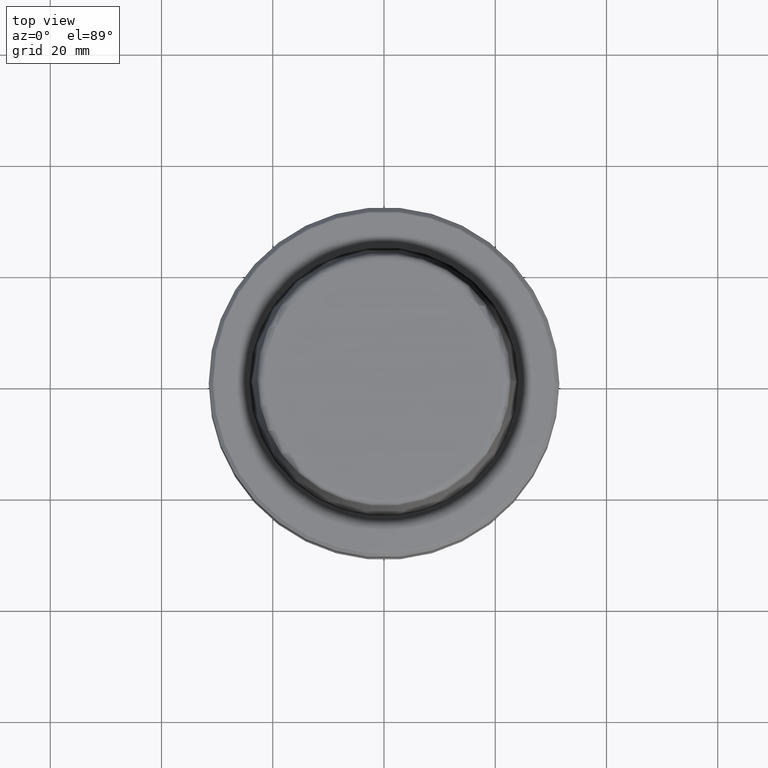
[diagram: clean part render]
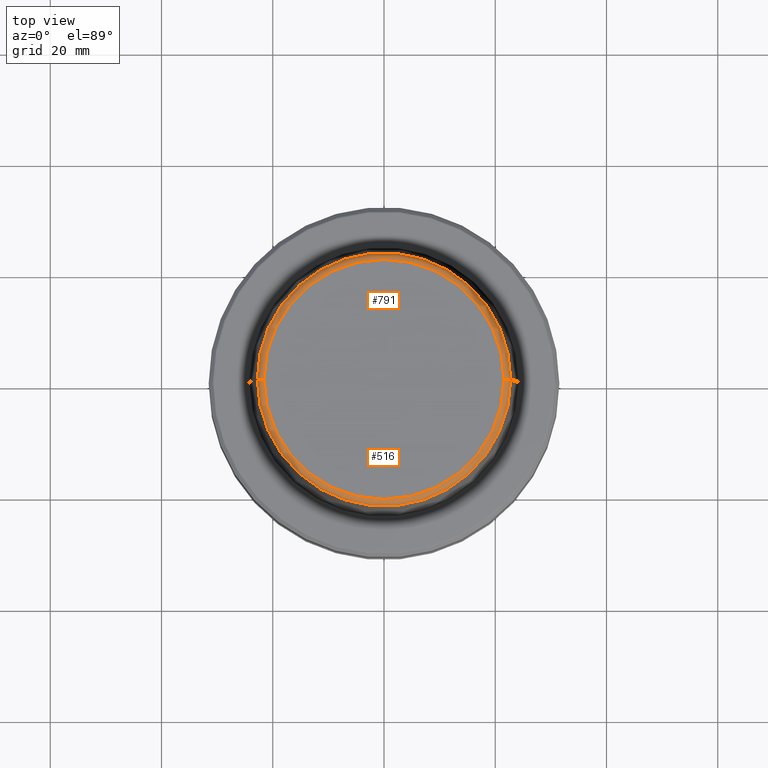
[diagram: same view with one multi-face feature highlighted, each face labeled with its STEP entity id]
A machine part, top view. The highlighted faces form ONE feature: a constant-radius fillet chain: 2 tangent blend faces with common blend radius 1.2 mm. The faces share edges in the B-rep.
Their STEP definitions:
[1] entity #791 (Torus):
#27 = AXIS2_PLACEMENT_3D ( 'NONE', #905, #327, #1014 ) ;
#49 = DIRECTION ( 'NONE',  ( 1.000000000000000000, 0.0000000000000000000, 0.0000000000000000000 ) ) ;
#127 = DIRECTION ( 'NONE',  ( 0.0000000000000000000, 0.0000000000000000000, -1.000000000000000000 ) ) ;
#139 = DIRECTION ( 'NONE',  ( -0.0000000000000000000, -0.0000000000000000000, 1.000000000000000000 ) ) ;
#148 = VERTEX_POINT ( 'NONE', #1227 ) ;
#157 = AXIS2_PLACEMENT_3D ( 'NONE', #281, #966, #385 ) ;
#259 = AXIS2_PLACEMENT_3D ( 'NONE', #1026, #824, #49 ) ;
#281 = CARTESIAN_POINT ( 'NONE',  ( -21.58108272732117100, 2.642920388414810300E-015, 30.69999999999999200 ) ) ;
#290 = EDGE_CURVE ( 'NONE', #567, #524, #733, .T. ) ;
#319 = CIRCLE ( 'NONE', #27, 21.58108272732117100 ) ;
#327 = DIRECTION ( 'NONE',  ( -0.0000000000000000000, -0.0000000000000000000, 1.000000000000000000 ) ) ;
#385 = DIRECTION ( 'NONE',  ( -1.000000000000000000, 1.224646799147353200E-016, 0.0000000000000000000 ) ) ;
#388 = TOROIDAL_SURFACE ( 'NONE', #259, 21.58108272732117100, 1.200000000000003100 ) ;
#394 = ORIENTED_EDGE ( 'NONE', *, *, #1166, .F. ) ;
#524 = VERTEX_POINT ( 'NONE', #831 ) ;
#562 = EDGE_LOOP ( 'NONE', ( #1038, #642, #394, #834 ) ) ;
#567 = VERTEX_POINT ( 'NONE', #863 ) ;
#637 = AXIS2_PLACEMENT_3D ( 'NONE', #847, #1086, #127 ) ;
#642 = ORIENTED_EDGE ( 'NONE', *, *, #902, .T. ) ;
#719 = CARTESIAN_POINT ( 'NONE',  ( 0.0000000000000000000, 0.0000000000000000000, 30.76004333261571900 ) ) ;
#733 = CIRCLE ( 'NONE', #637, 1.200000000000003100 ) ;
#739 = EDGE_CURVE ( 'NONE', #567, #148, #1164, .T. ) ;
#791 = ADVANCED_FACE ( 'NONE', ( #1148 ), #388, .T. ) ;
#819 = DIRECTION ( 'NONE',  ( 1.000000000000000000, 0.0000000000000000000, 0.0000000000000000000 ) ) ;
#824 = DIRECTION ( 'NONE',  ( -0.0000000000000000000, -0.0000000000000000000, 1.000000000000000000 ) ) ;
#831 = CARTESIAN_POINT ( 'NONE',  ( 21.58108272732117100, 0.0000000000000000000, 31.89999999999999900 ) ) ;
#834 = ORIENTED_EDGE ( 'NONE', *, *, #290, .F. ) ;
#847 = CARTESIAN_POINT ( 'NONE',  ( 21.58108272732117100, 0.0000000000000000000, 30.69999999999999200 ) ) ;
#859 = VERTEX_POINT ( 'NONE', #1252 ) ;
#863 = CARTESIAN_POINT ( 'NONE',  ( 22.77957961851797500, 0.0000000000000000000, 30.76004333261571900 ) ) ;
#902 = EDGE_CURVE ( 'NONE', #148, #859, #1187, .T. ) ;
#905 = CARTESIAN_POINT ( 'NONE',  ( 0.0000000000000000000, 0.0000000000000000000, 31.89999999999999900 ) ) ;
#960 = AXIS2_PLACEMENT_3D ( 'NONE', #719, #139, #819 ) ;
#966 = DIRECTION ( 'NONE',  ( 1.224646799147353200E-016, 1.000000000000000000, 0.0000000000000000000 ) ) ;
#1014 = DIRECTION ( 'NONE',  ( 1.000000000000000000, 0.0000000000000000000, 0.0000000000000000000 ) ) ;
#1026 = CARTESIAN_POINT ( 'NONE',  ( 0.0000000000000000000, 0.0000000000000000000, 30.69999999999999200 ) ) ;
#1038 = ORIENTED_EDGE ( 'NONE', *, *, #739, .T. ) ;
#1086 = DIRECTION ( 'NONE',  ( 0.0000000000000000000, -1.000000000000000000, 0.0000000000000000000 ) ) ;
#1148 = FACE_OUTER_BOUND ( 'NONE', #562, .T. ) ;
#1164 = CIRCLE ( 'NONE', #960, 22.77957961851797500 ) ;
#1166 = EDGE_CURVE ( 'NONE', #524, #859, #319, .T. ) ;
#1187 = CIRCLE ( 'NONE', #157, 1.200000000000003100 ) ;
#1227 = CARTESIAN_POINT ( 'NONE',  ( -22.77957961851797500, 2.789693926574032200E-015, 30.76004333261571900 ) ) ;
#1252 = CARTESIAN_POINT ( 'NONE',  ( -21.58108272732117100, 2.716307157494421400E-015, 31.89999999999999900 ) ) ;
[2] entity #516 (Torus):
#127 = DIRECTION ( 'NONE',  ( 0.0000000000000000000, 0.0000000000000000000, -1.000000000000000000 ) ) ;
#148 = VERTEX_POINT ( 'NONE', #1227 ) ;
#157 = AXIS2_PLACEMENT_3D ( 'NONE', #281, #966, #385 ) ;
#281 = CARTESIAN_POINT ( 'NONE',  ( -21.58108272732117100, 2.642920388414810300E-015, 30.69999999999999200 ) ) ;
#290 = EDGE_CURVE ( 'NONE', #567, #524, #733, .T. ) ;
#317 = ORIENTED_EDGE ( 'NONE', *, *, #684, .F. ) ;
#358 = AXIS2_PLACEMENT_3D ( 'NONE', #744, #431, #1145 ) ;
#385 = DIRECTION ( 'NONE',  ( -1.000000000000000000, 1.224646799147353200E-016, 0.0000000000000000000 ) ) ;
#386 = DIRECTION ( 'NONE',  ( -0.0000000000000000000, -0.0000000000000000000, 1.000000000000000000 ) ) ;
#421 = AXIS2_PLACEMENT_3D ( 'NONE', #895, #386, #1089 ) ;
#431 = DIRECTION ( 'NONE',  ( -0.0000000000000000000, -0.0000000000000000000, 1.000000000000000000 ) ) ;
#516 = ADVANCED_FACE ( 'NONE', ( #590 ), #564, .T. ) ;
#521 = AXIS2_PLACEMENT_3D ( 'NONE', #585, #1270, #678 ) ;
#524 = VERTEX_POINT ( 'NONE', #831 ) ;
#564 = TOROIDAL_SURFACE ( 'NONE', #421, 21.58108272732117100, 1.200000000000003100 ) ;
#567 = VERTEX_POINT ( 'NONE', #863 ) ;
#585 = CARTESIAN_POINT ( 'NONE',  ( 0.0000000000000000000, 0.0000000000000000000, 30.76004333261571900 ) ) ;
#590 = FACE_OUTER_BOUND ( 'NONE', #694, .T. ) ;
#637 = AXIS2_PLACEMENT_3D ( 'NONE', #847, #1086, #127 ) ;
#678 = DIRECTION ( 'NONE',  ( 1.000000000000000000, 0.0000000000000000000, 0.0000000000000000000 ) ) ;
#684 = EDGE_CURVE ( 'NONE', #859, #524, #843, .T. ) ;
#694 = EDGE_LOOP ( 'NONE', ( #1107, #1157, #1141, #317 ) ) ;
#733 = CIRCLE ( 'NONE', #637, 1.200000000000003100 ) ;
#744 = CARTESIAN_POINT ( 'NONE',  ( 0.0000000000000000000, 0.0000000000000000000, 31.89999999999999900 ) ) ;
#831 = CARTESIAN_POINT ( 'NONE',  ( 21.58108272732117100, 0.0000000000000000000, 31.89999999999999900 ) ) ;
#843 = CIRCLE ( 'NONE', #358, 21.58108272732117100 ) ;
#847 = CARTESIAN_POINT ( 'NONE',  ( 21.58108272732117100, 0.0000000000000000000, 30.69999999999999200 ) ) ;
#859 = VERTEX_POINT ( 'NONE', #1252 ) ;
#863 = CARTESIAN_POINT ( 'NONE',  ( 22.77957961851797500, 0.0000000000000000000, 30.76004333261571900 ) ) ;
#895 = CARTESIAN_POINT ( 'NONE',  ( 0.0000000000000000000, 0.0000000000000000000, 30.69999999999999200 ) ) ;
#902 = EDGE_CURVE ( 'NONE', #148, #859, #1187, .T. ) ;
#948 = EDGE_CURVE ( 'NONE', #148, #567, #1272, .T. ) ;
#966 = DIRECTION ( 'NONE',  ( 1.224646799147353200E-016, 1.000000000000000000, 0.0000000000000000000 ) ) ;
#1086 = DIRECTION ( 'NONE',  ( 0.0000000000000000000, -1.000000000000000000, 0.0000000000000000000 ) ) ;
#1089 = DIRECTION ( 'NONE',  ( 1.000000000000000000, 0.0000000000000000000, 0.0000000000000000000 ) ) ;
#1107 = ORIENTED_EDGE ( 'NONE', *, *, #902, .F. ) ;
#1141 = ORIENTED_EDGE ( 'NONE', *, *, #290, .T. ) ;
#1145 = DIRECTION ( 'NONE',  ( 1.000000000000000000, 0.0000000000000000000, 0.0000000000000000000 ) ) ;
#1157 = ORIENTED_EDGE ( 'NONE', *, *, #948, .T. ) ;
#1187 = CIRCLE ( 'NONE', #157, 1.200000000000003100 ) ;
#1227 = CARTESIAN_POINT ( 'NONE',  ( -22.77957961851797500, 2.789693926574032200E-015, 30.76004333261571900 ) ) ;
#1252 = CARTESIAN_POINT ( 'NONE',  ( -21.58108272732117100, 2.716307157494421400E-015, 31.89999999999999900 ) ) ;
#1270 = DIRECTION ( 'NONE',  ( -0.0000000000000000000, -0.0000000000000000000, 1.000000000000000000 ) ) ;
#1272 = CIRCLE ( 'NONE', #521, 22.77957961851797500 ) ;